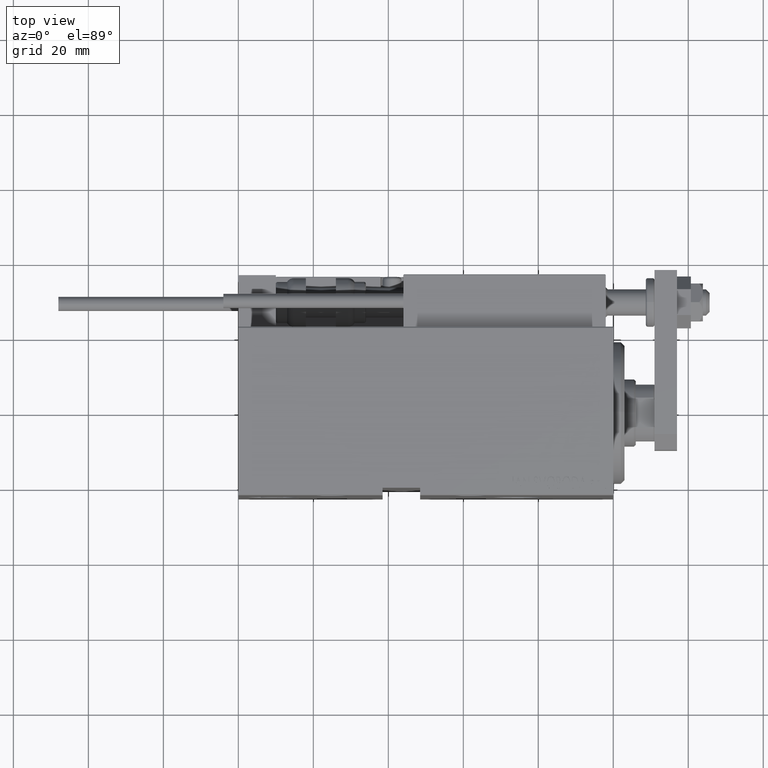
[diagram: clean part render]
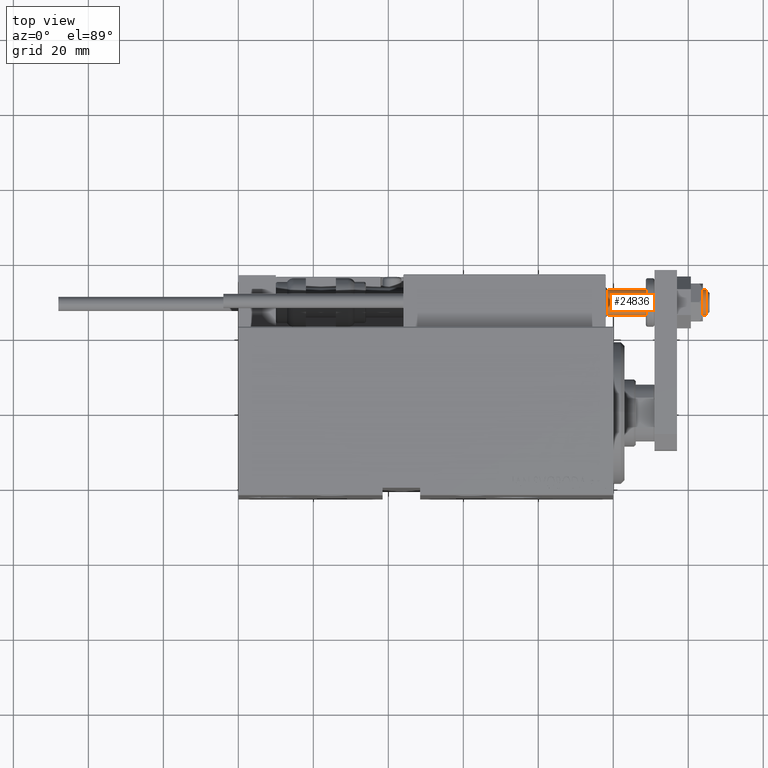
[diagram: same view with one face highlighted and labeled with its STEP entity id]
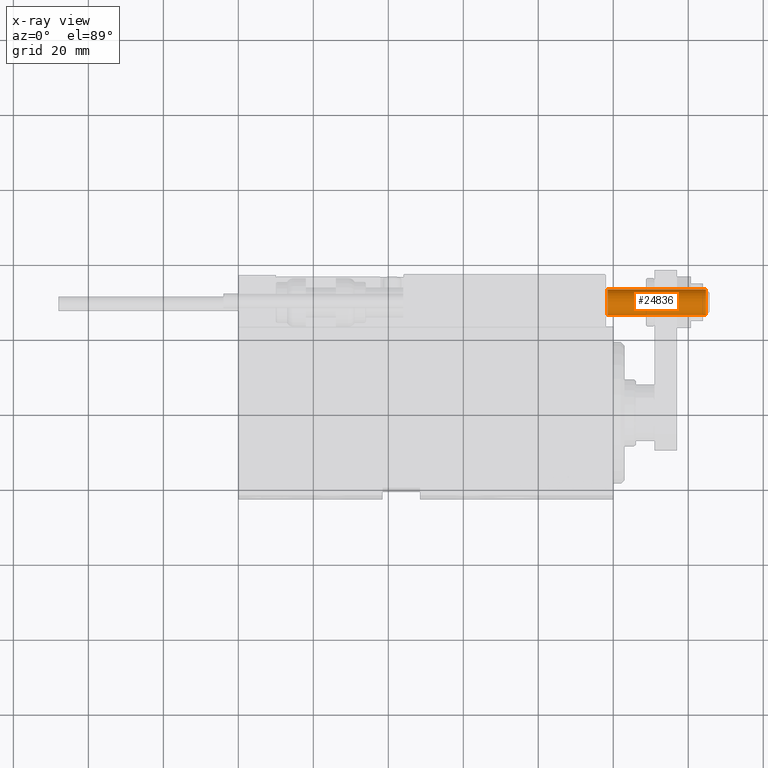
[diagram: x-ray of the same camera — body ghosted, the highlighted face saturated]
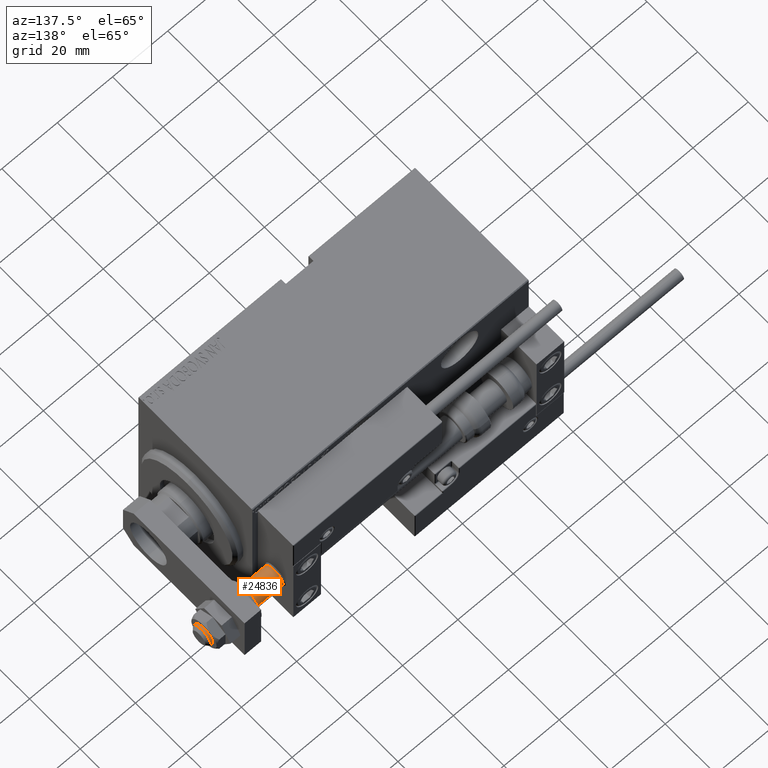
[diagram: same view with one face highlighted and labeled with its STEP entity id]
A machine part, top view. The second image highlights one B-rep face of the part: STEP entity #24836.
The next image is the same camera in x-ray: the body ghosted, the highlighted face saturated — about 0% of this face is hidden behind the body in this view.
A second angle (auxiliary view) of the same face is appended — the face is thin or edge-on in the first view.
In plain terms, the highlighted cylindrical surface (edge-blend (fillet) strip) has radius 3.5 mm, axis along (-1, -0, 0).
Its self-contained STEP definition (entity closure, byte-faithful):
#2162 = CARTESIAN_POINT ( 'NONE',  ( 0.000000000000000000, 0.000000000000000000, 1.500000000000025535 ) ) ;
#3254 = DIRECTION ( 'NONE',  ( 0.000000000000000000, 0.000000000000000000, 1.000000000000000000 ) ) ;
#4942 = ORIENTED_EDGE ( 'NONE', *, *, #31640, .T. ) ;
#6512 = VERTEX_POINT ( 'NONE', #45293 ) ;
#7042 = CARTESIAN_POINT ( 'NONE',  ( 0.000000000000000000, 0.000000000000000000, -24.70000000000008811 ) ) ;
#7999 = AXIS2_PLACEMENT_3D ( 'NONE', #2162, #36968, #33417 ) ;
#10704 = CARTESIAN_POINT ( 'NONE',  ( -3.500000000000000000, 4.286263797015735609E-16, -24.70000000000008811 ) ) ;
#12172 = ORIENTED_EDGE ( 'NONE', *, *, #19460, .T. ) ;
#12513 = CARTESIAN_POINT ( 'NONE',  ( 3.500000000000000000, 0.000000000000000000, -24.70000000000008811 ) ) ;
#16920 = VERTEX_POINT ( 'NONE', #25879 ) ;
#16970 = CARTESIAN_POINT ( 'NONE',  ( 0.000000000000000000, 0.000000000000000000, -25.69999999999999929 ) ) ;
#18457 = ORIENTED_EDGE ( 'NONE', *, *, #48129, .F. ) ;
#18845 = LINE ( 'NONE', #38257, #40283 ) ;
#19368 = CARTESIAN_POINT ( 'NONE',  ( 3.500000000000000000, 0.000000000000000000, -25.69999999999999929 ) ) ;
#19460 = EDGE_CURVE ( 'NONE', #6512, #16920, #34562, .T. ) ;
#22659 = LINE ( 'NONE', #19368, #31173 ) ;
#24836 = ADVANCED_FACE ( 'NONE', ( #39926 ), #44218, .T. ) ;
#25698 = VERTEX_POINT ( 'NONE', #10704 ) ;
#25879 = CARTESIAN_POINT ( 'NONE',  ( -3.500000000000000000, 4.286263797015735609E-16, 1.500000000000025535 ) ) ;
#26879 = DIRECTION ( 'NONE',  ( -0.000000000000000000, -0.000000000000000000, 1.000000000000000000 ) ) ;
#28059 = DIRECTION ( 'NONE',  ( 1.000000000000000000, 0.000000000000000000, 0.000000000000000000 ) ) ;
#30565 = VERTEX_POINT ( 'NONE', #12513 ) ;
#31173 = VECTOR ( 'NONE', #49389, 1000.000000000000000 ) ;
#31640 = EDGE_CURVE ( 'NONE', #25698, #30565, #38249, .T. ) ;
#33417 = DIRECTION ( 'NONE',  ( 1.000000000000000000, 0.000000000000000000, 0.000000000000000000 ) ) ;
#34562 = CIRCLE ( 'NONE', #7999, 3.500000000000000000 ) ;
#36968 = DIRECTION ( 'NONE',  ( 0.000000000000000000, 0.000000000000000000, -1.000000000000000000 ) ) ;
#37070 = DIRECTION ( 'NONE',  ( -1.000000000000000000, 0.000000000000000000, 0.000000000000000000 ) ) ;
#37430 = AXIS2_PLACEMENT_3D ( 'NONE', #7042, #3254, #37070 ) ;
#38249 = CIRCLE ( 'NONE', #37430, 3.500000000000000000 ) ;
#38257 = CARTESIAN_POINT ( 'NONE',  ( -3.500000000000000000, 4.286263797015735609E-16, -25.69999999999999929 ) ) ;
#39926 = FACE_OUTER_BOUND ( 'NONE', #46798, .T. ) ;
#40283 = VECTOR ( 'NONE', #26879, 1000.000000000000000 ) ;
#41554 = EDGE_CURVE ( 'NONE', #30565, #6512, #22659, .T. ) ;
#44218 = CYLINDRICAL_SURFACE ( 'NONE', #47536, 3.500000000000000000 ) ;
#45293 = CARTESIAN_POINT ( 'NONE',  ( 3.500000000000000000, 0.000000000000000000, 1.500000000000025535 ) ) ;
#46798 = EDGE_LOOP ( 'NONE', ( #18457, #4942, #48052, #12172 ) ) ;
#47536 = AXIS2_PLACEMENT_3D ( 'NONE', #16970, #48229, #28059 ) ;
#48052 = ORIENTED_EDGE ( 'NONE', *, *, #41554, .T. ) ;
#48129 = EDGE_CURVE ( 'NONE', #25698, #16920, #18845, .T. ) ;
#48229 = DIRECTION ( 'NONE',  ( -0.000000000000000000, -0.000000000000000000, 1.000000000000000000 ) ) ;
#49389 = DIRECTION ( 'NONE',  ( -0.000000000000000000, -0.000000000000000000, 1.000000000000000000 ) ) ;